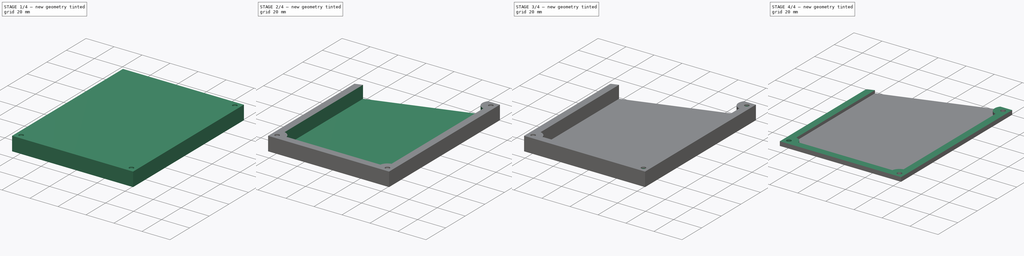
[diagram: build sequence overview — one tinted view per stage of 4, left to right]
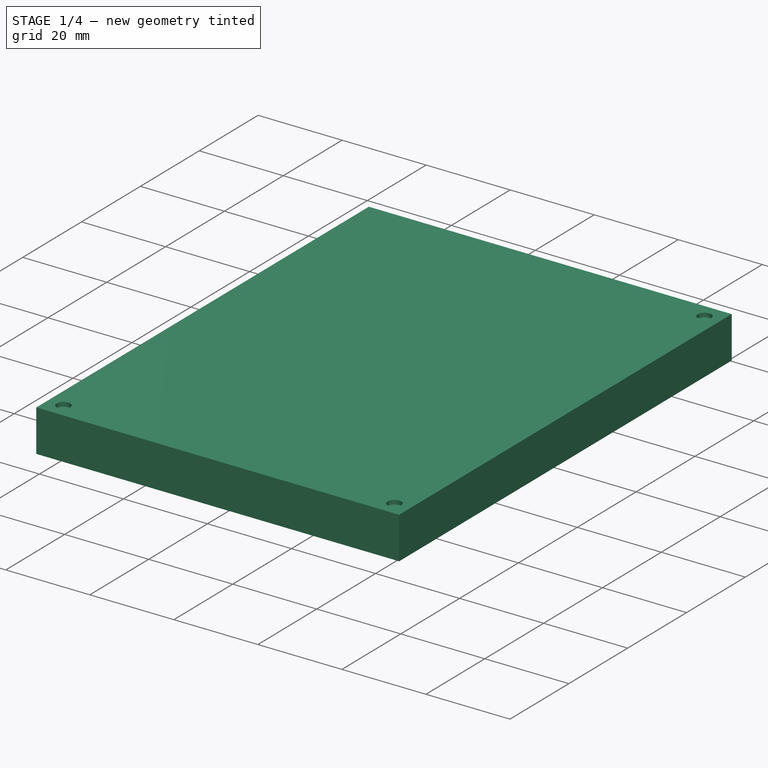
[diagram: stage 1 of 4 — iso view after this stage's code; geometry added in this stage tinted green]
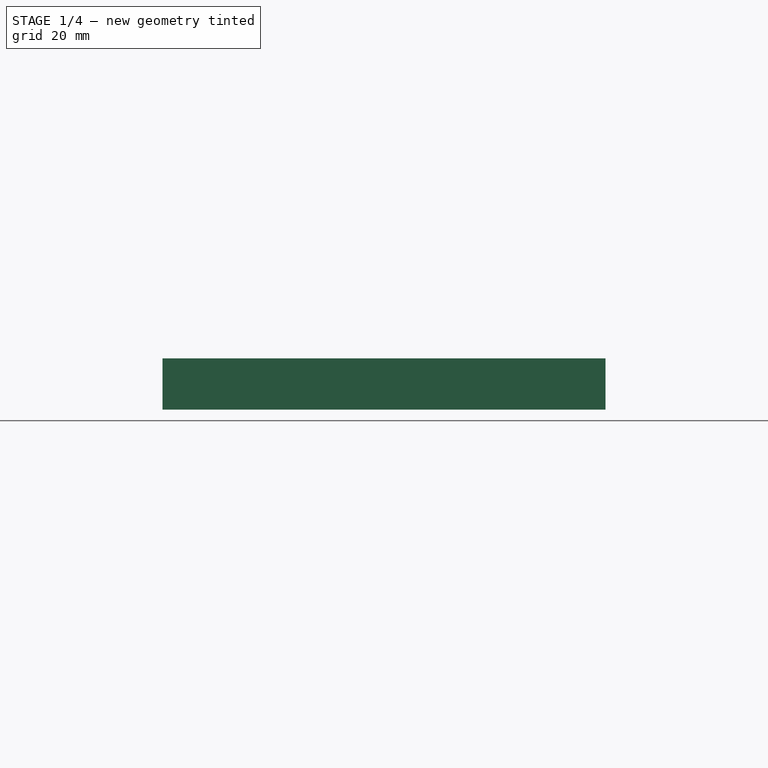
[diagram: stage 1 of 4 — front view after this stage's code; geometry added in this stage tinted green]
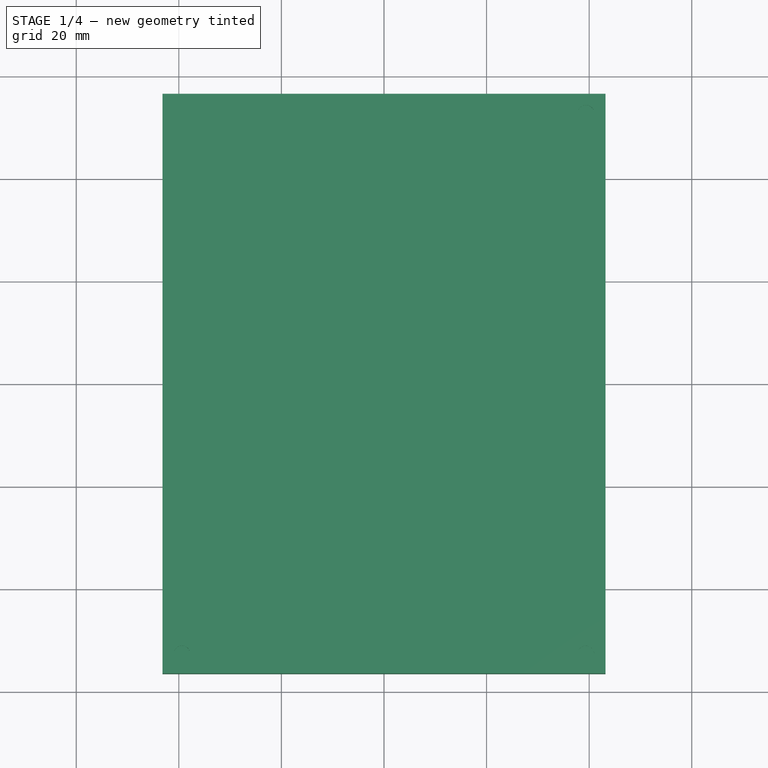
[diagram: stage 1 of 4 — top view after this stage's code; geometry added in this stage tinted green]
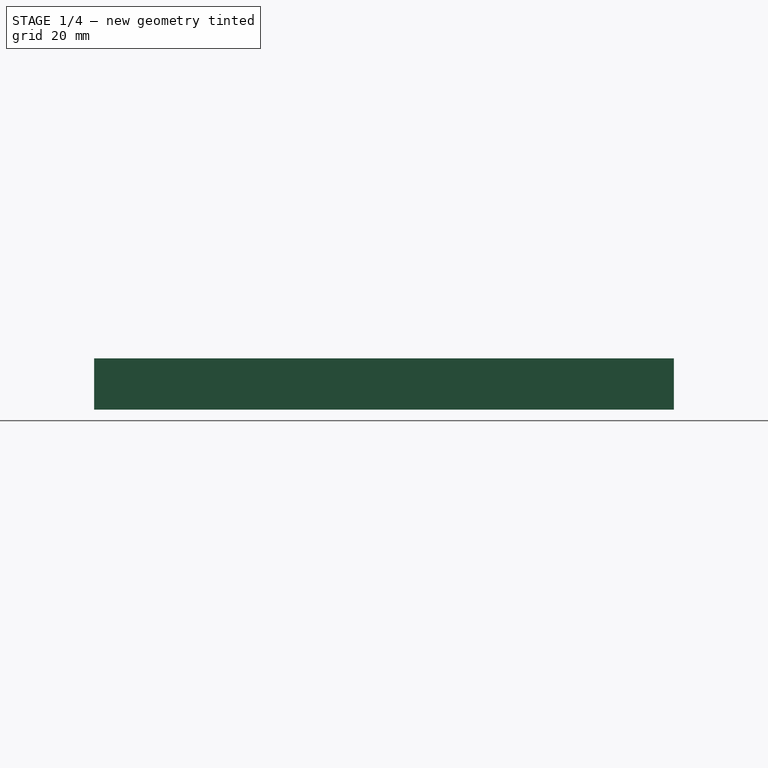
[diagram: stage 1 of 4 — right view after this stage's code; geometry added in this stage tinted green]
FCSTD DOCUMENT  (FreeCAD 0.18.4R)
Label: protector
License: All rights reserved
LicenseURL: http://en.wikipedia.org/wiki/All_rights_reserved
objects: PartDesign::Pocket×7, Sketcher::SketchObject×4, PartDesign::Pad×1, PartDesign::Fillet×1, PartDesign::Body×1
note: 22 computed .brp shape members not serialized (recipe doc carries the construction recipe); baked Part::Feature solids carry a one-line shape summary decoded from their .brp

FEATURE [Sketcher::SketchObject] Sketch
  MapMode = 5
  Support = -> [XY_Plane]
  sketch-geometry (4):
    g0: LineSegment StartX=-43.18 StartY=56.515 StartZ=0 EndX=43.18 EndY=56.515 EndZ=0
    g1: LineSegment StartX=43.18 StartY=56.515 StartZ=0 EndX=43.18 EndY=-56.515 EndZ=0
    g2: LineSegment StartX=43.18 StartY=-56.515 StartZ=0 EndX=-43.18 EndY=-56.515 EndZ=0
    g3: LineSegment StartX=-43.18 StartY=-56.515 StartZ=0 EndX=-43.18 EndY=56.515 EndZ=0
  constraints (10):
    c: Coincident(g0,g1)
    c: Coincident(g1,g2)
    c: Coincident(g2,g3)
    c: Coincident(g3,g0)
    c: Horizontal(g0)
    c: Vertical(g3)
    c: Symmetric(g1,g2,g-2)
    c: Symmetric(g1,g0,g-1)
    c: DistanceX(g2,g2) = 86.36
    c: DistanceY(g1,g1) = 113.03
FEATURE [PartDesign::Pad] Pad
  Length = 10
  Length2 = 100
  Profile = -> Sketch
  Type = 0
FEATURE [Sketcher::SketchObject] Sketch001
  MapMode = 5
  Placement = pos=(0,0,10) rot=(0,0,1;0rad)
  Support = -> [Pad]
  sketch-geometry (5):
    g0: Circle CenterX=-39.37 CenterY=-52.705 CenterZ=0 NormalX=0 NormalY=0 NormalZ=1 AngleXU=0 Radius=1.6
    g1: Circle CenterX=39.37 CenterY=-52.705 CenterZ=0 NormalX=0 NormalY=0 NormalZ=1 AngleXU=0 Radius=1.6
    g2: Circle CenterX=39.37 CenterY=52.705 CenterZ=0 NormalX=0 NormalY=0 NormalZ=1 AngleXU=0 Radius=1.6
    g3: LineSegment [constr] StartX=-39.37 StartY=-52.705 StartZ=0 EndX=39.37 EndY=-52.705 EndZ=0
    g4: LineSegment [constr] StartX=39.37 StartY=-52.705 StartZ=0 EndX=39.37 EndY=52.705 EndZ=0
  constraints (11):
    c: Equal(g2,g1)
    c: Equal(g1,g0)
    c: Radius(g2) = 1.6
    c: Coincident(g3,g0)
    c: Coincident(g3,g1)
    c: Coincident(g4,g1)
    c: Coincident(g4,g2)
    c: Symmetric(g1,g0,g-2)
    c: DistanceX(g3,g3) = 78.74
    c: Symmetric(g1,g2,g-1)
    c: DistanceY(g4,g4) = 105.41
FEATURE [PartDesign::Pocket] Pocket
  BaseFeature = -> Pad
  Length = 1
  Length2 = 100
  Profile = -> Sketch001
  Type = 0
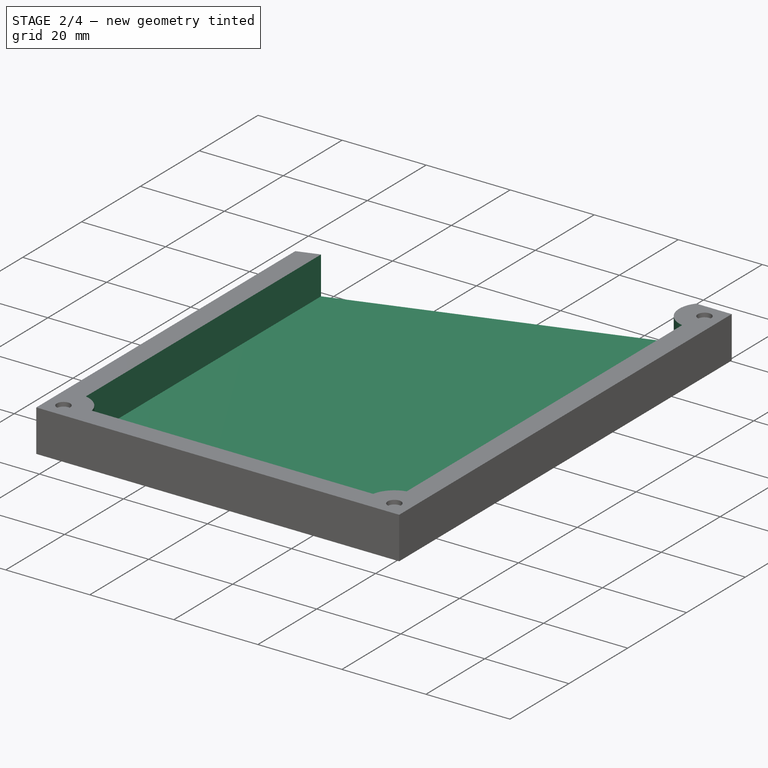
[diagram: stage 2 of 4 — iso view after this stage's code; geometry added in this stage tinted green]
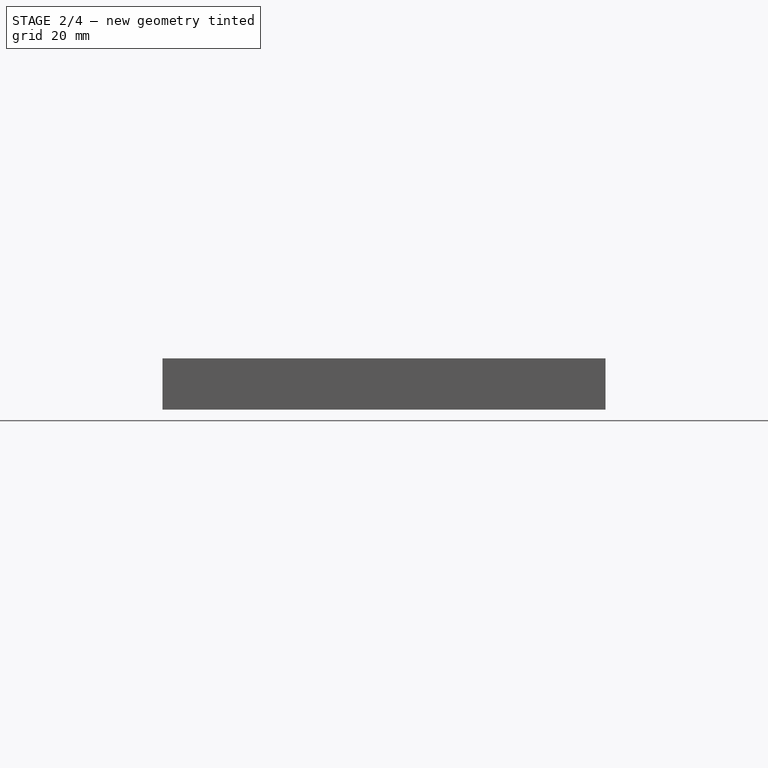
[diagram: stage 2 of 4 — front view after this stage's code; geometry added in this stage tinted green]
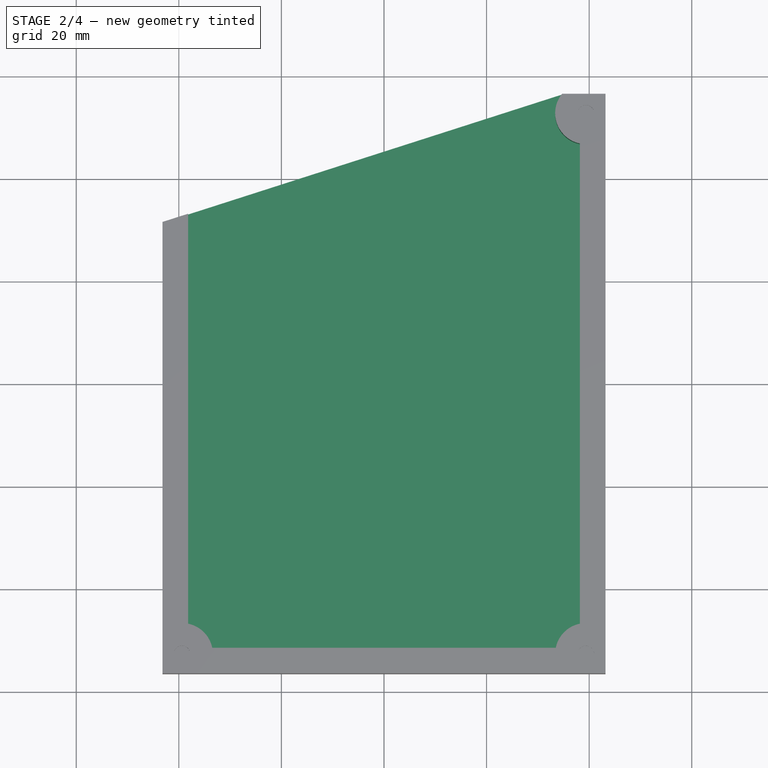
[diagram: stage 2 of 4 — top view after this stage's code; geometry added in this stage tinted green]
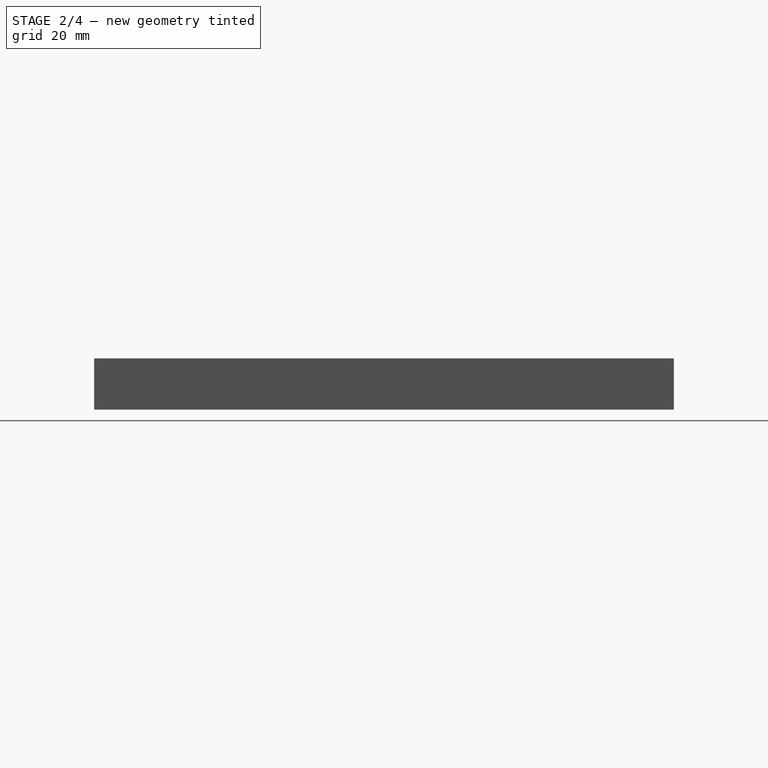
[diagram: stage 2 of 4 — right view after this stage's code; geometry added in this stage tinted green]
FEATURE [Sketcher::SketchObject] Sketch002
  ExternalGeometry = -> [Pocket]
  MapMode = 5
  Placement = pos=(0,0,10) rot=(0,0,1;0rad)
  Support = -> [Pocket]
  sketch-geometry (7):
    g0: LineSegment StartX=-38.18 StartY=56.515 StartZ=0 EndX=34.7349 EndY=56.515 EndZ=0
    g1: LineSegment StartX=-38.18 StartY=-46.8242 StartZ=0 EndX=-38.18 EndY=56.515 EndZ=0
    g2: ArcOfCircle CenterX=-39.37 CenterY=-52.705 CenterZ=0 NormalX=0 NormalY=0 NormalZ=1 AngleXU=0 Radius=6 StartAngle=0.199657 EndAngle=1.37114
    g3: ArcOfCircle CenterX=39.37 CenterY=-52.705 CenterZ=0 NormalX=0 NormalY=0 NormalZ=1 AngleXU=0 Radius=6 StartAngle=1.77045 EndAngle=2.94194
    g4: ArcOfCircle CenterX=39.37 CenterY=52.705 CenterZ=0 NormalX=0 NormalY=0 NormalZ=1 AngleXU=0 Radius=6 StartAngle=2.45358 EndAngle=4.51273
    g5: LineSegment StartX=-33.4892 StartY=-51.515 StartZ=0 EndX=33.4892 EndY=-51.515 EndZ=0
    g6: LineSegment StartX=38.18 StartY=-46.8242 StartZ=0 EndX=38.18 EndY=46.8242 EndZ=0
  constraints (20):
    c: Coincident(g1,g0)
    c: Vertical(g1)
    c: PointOnObject(g0,g-3)
    c: Coincident(g2,g-6)
    c: Coincident(g3,g-5)
    c: Coincident(g4,g-4)
    c: Coincident(g4,g0)
    c: Equal(g4,g3)
    c: Coincident(g1,g2)
    c: Coincident(g5,g2)
    c: Coincident(g5,g3)
    c: Coincident(g6,g3)
    c: Coincident(g6,g4)
    c: Vertical(g6)
    c: DistanceX(g-3,g0) = 5
    c: DistanceY(g-7,g2) = 5
    c: Symmetric(g3,g2,g-2)
    c: Symmetric(g3,g1,g-2)
    c: Horizontal(g0)
    c: Radius(g3) = 6
FEATURE [PartDesign::Pocket] Pocket001
  BaseFeature = -> Pocket
  Length = 9
  Length2 = 100
  Profile = -> Sketch002
  Type = 0
FEATURE [Sketcher::SketchObject] Sketch003
  ExternalGeometry = -> [Pocket001]
  MapMode = 5
  Placement = pos=(0,0,0) rot=(1,0,0;3.14159rad)
  Support = -> [Pocket001]
  sketch-geometry (5):
    g0: LineSegment StartX=34.7349 StartY=-56.515 StartZ=0 EndX=-43.18 EndY=-31.515 EndZ=0
    g1: LineSegment StartX=-43.18 StartY=-31.515 StartZ=0 EndX=-75.6936 EndY=-36.7789 EndZ=0
    g2: LineSegment StartX=-75.6936 StartY=-36.7789 StartZ=0 EndX=-62.6542 EndY=-136.901 EndZ=0
    g3: LineSegment StartX=-62.6542 StartY=-136.901 StartZ=0 EndX=71.5296 EndY=-145.782 EndZ=0
    g4: LineSegment StartX=71.5296 StartY=-145.782 StartZ=0 EndX=34.7349 EndY=-56.515 EndZ=0
  constraints (8):
    c: Coincident(g-3,g0)
    c: PointOnObject(g0,g-4)
    c: Coincident(g0,g1)
    c: Coincident(g1,g2)
    c: Coincident(g2,g3)
    c: Coincident(g3,g4)
    c: Coincident(g4,g0)
    c: DistanceY(g0,g0) = 25
FEATURE [PartDesign::Pocket] Pocket002
  BaseFeature = -> Pocket001
  Length = 5
  Length2 = 100
  Profile = -> Sketch003
  Type = 1
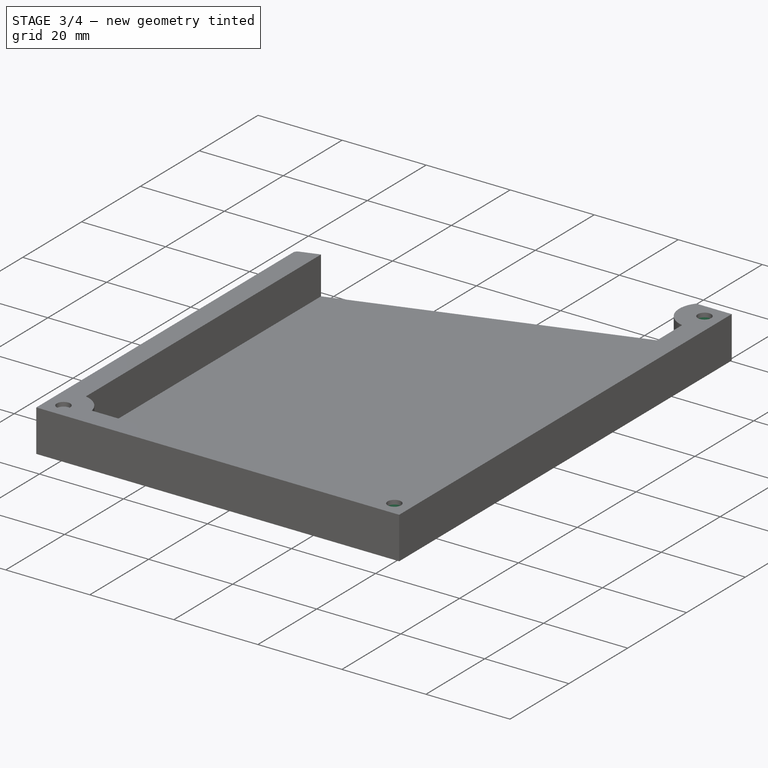
[diagram: stage 3 of 4 — iso view after this stage's code; geometry added in this stage tinted green]
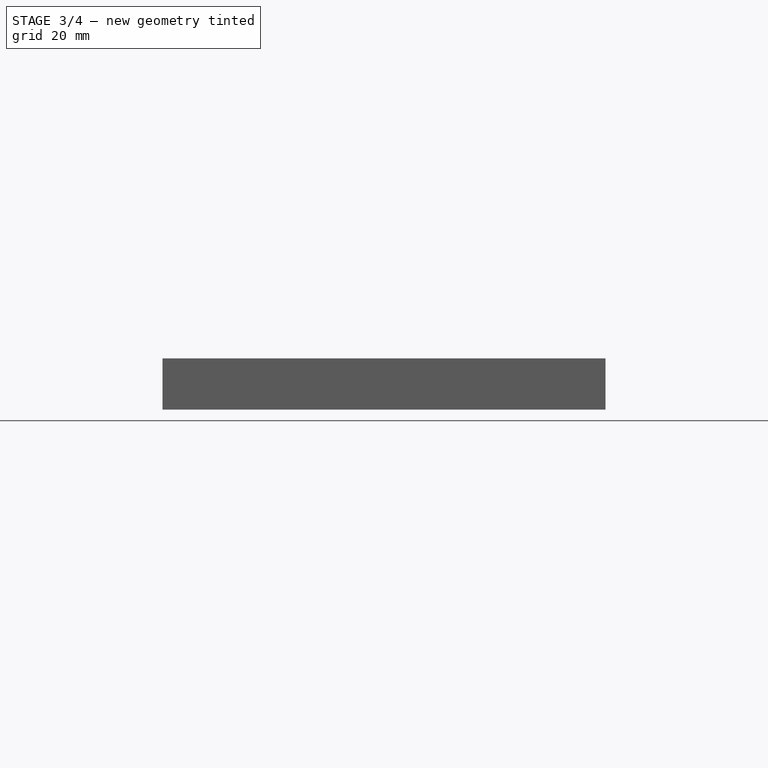
[diagram: stage 3 of 4 — front view after this stage's code; geometry added in this stage tinted green]
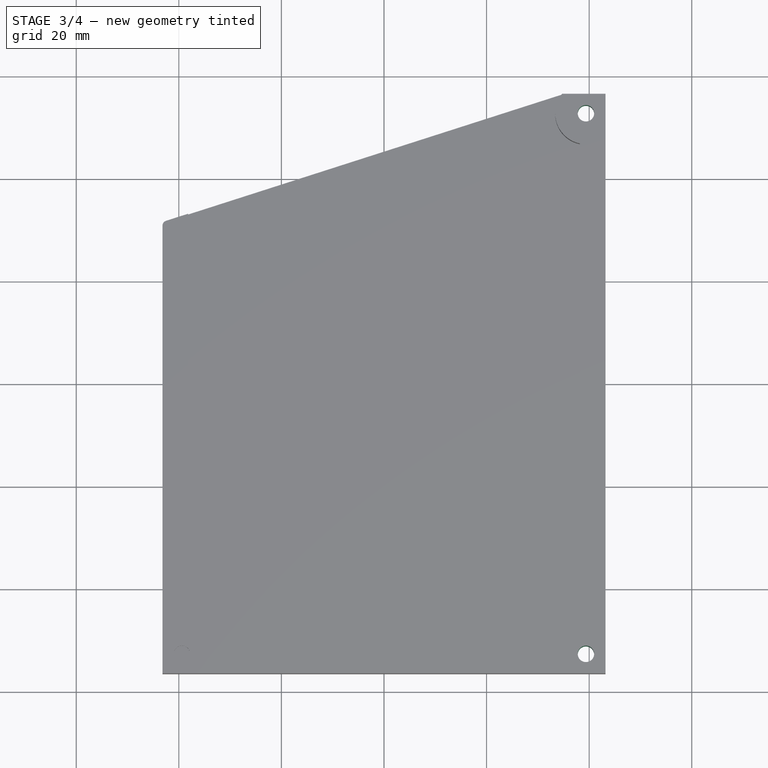
[diagram: stage 3 of 4 — top view after this stage's code; geometry added in this stage tinted green]
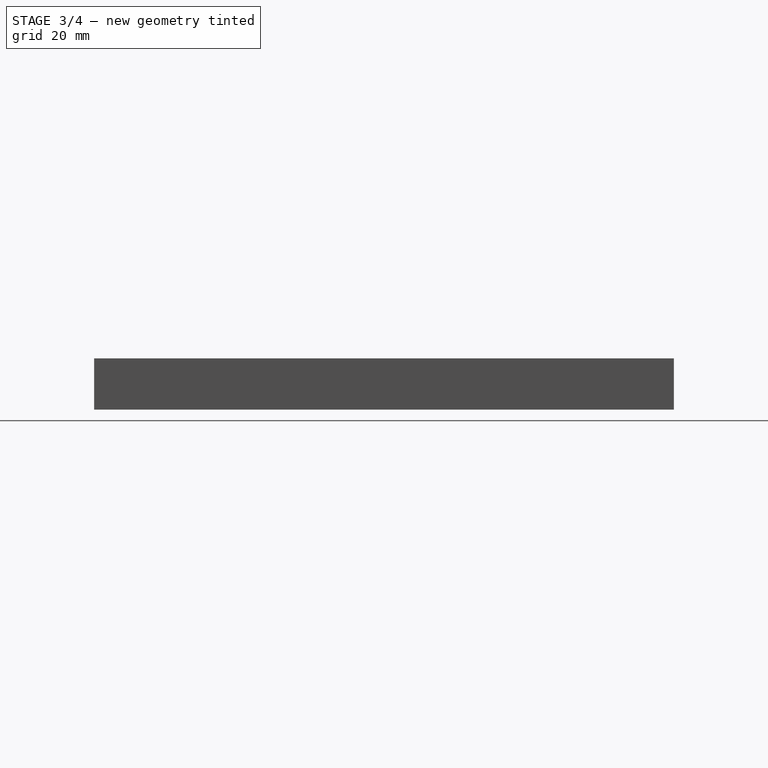
[diagram: stage 3 of 4 — right view after this stage's code; geometry added in this stage tinted green]
FEATURE [PartDesign::Fillet] Fillet
  Base = -> Pocket002 [Edge26]
  BaseFeature = -> Pocket002
  Radius = 1
FEATURE [PartDesign::Pocket] Pocket003
  BaseFeature = -> Fillet
  Length = 5
  Length2 = 100
  Profile = -> Fillet [Face20]
  Type = 1
FEATURE [PartDesign::Pocket] Pocket004
  BaseFeature = -> Pocket003
  Length = 5
  Length2 = 100
  Profile = -> Pocket003 [Face20]
  Type = 1
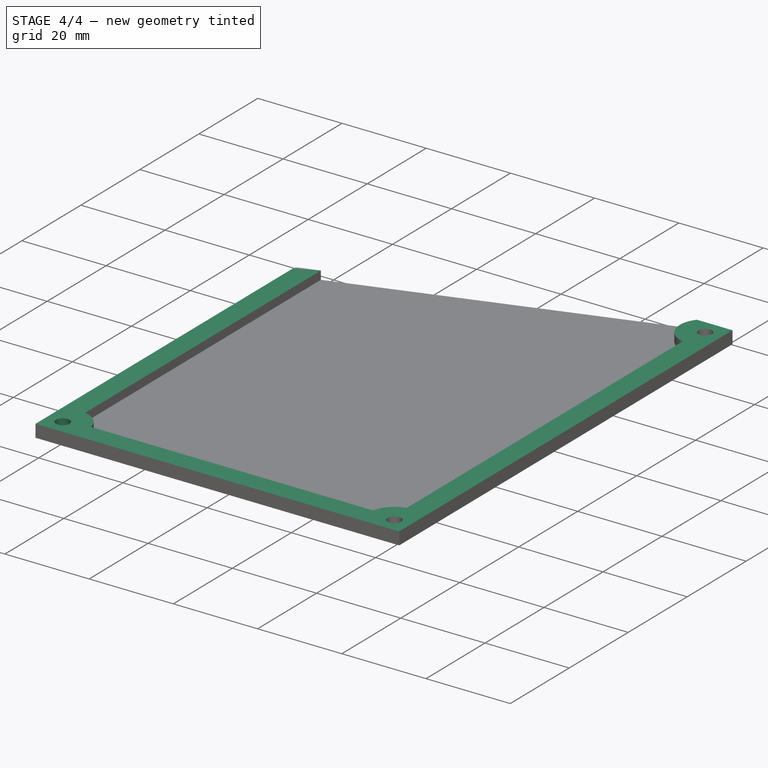
[diagram: stage 4 of 4 — iso view after this stage's code; geometry added in this stage tinted green]
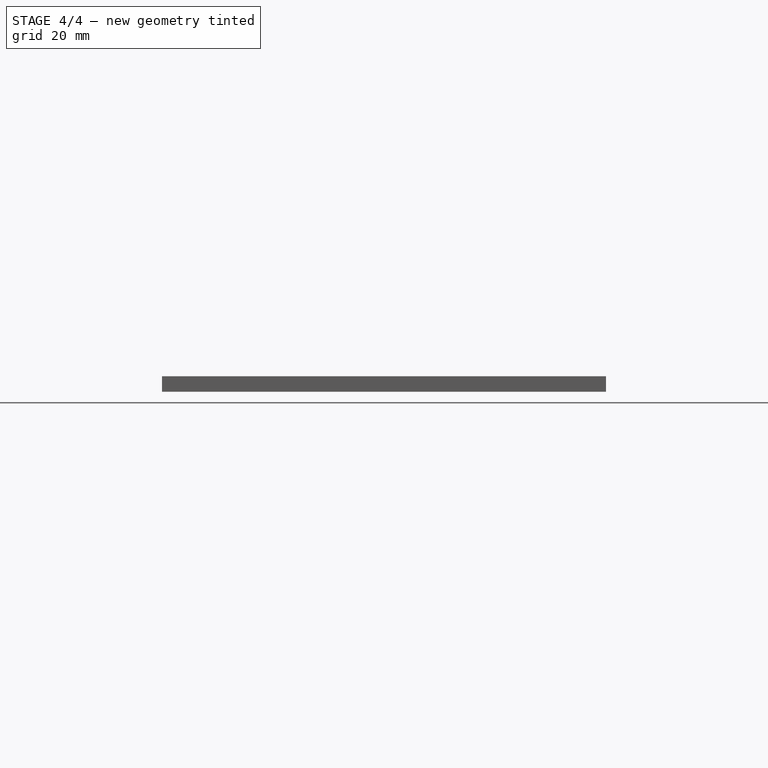
[diagram: stage 4 of 4 — front view after this stage's code; geometry added in this stage tinted green]
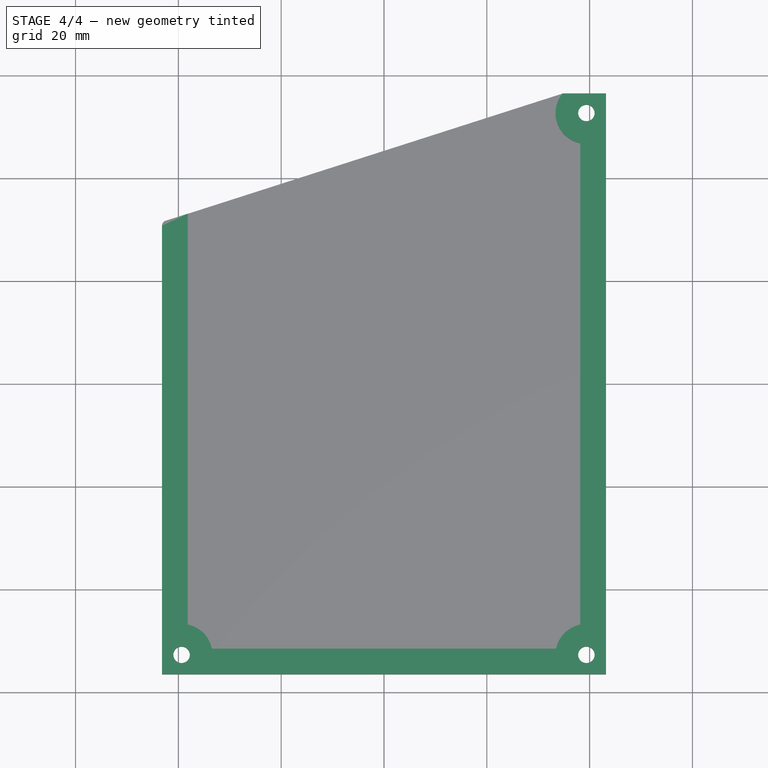
[diagram: stage 4 of 4 — top view after this stage's code; geometry added in this stage tinted green]
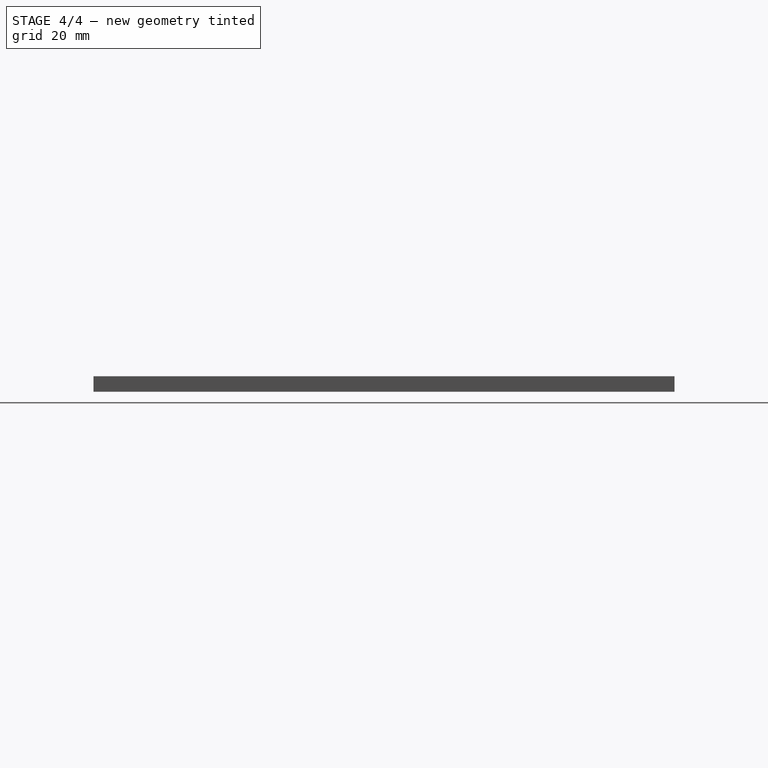
[diagram: stage 4 of 4 — right view after this stage's code; geometry added in this stage tinted green]
FEATURE [PartDesign::Pocket] Pocket005
  BaseFeature = -> Pocket004
  Length = 5
  Length2 = 100
  Profile = -> Pocket004 [Face21]
  Type = 1
FEATURE [PartDesign::Pocket] Pocket006
  BaseFeature = -> Pocket005
  Length = 7
  Length2 = 100
  Profile = -> Pocket005 [Face11]
  Type = 0
FEATURE [PartDesign::Body] Body
  Group = -> [Sketch,Pad,Sketch001,Pocket,Sketch002,Pocket001,Sketch003,Pocket002,Fillet,Pocket003,Pocket004,Pocket005,Pocket006]
  Origin = -> Origin
  Tip = -> Pocket006
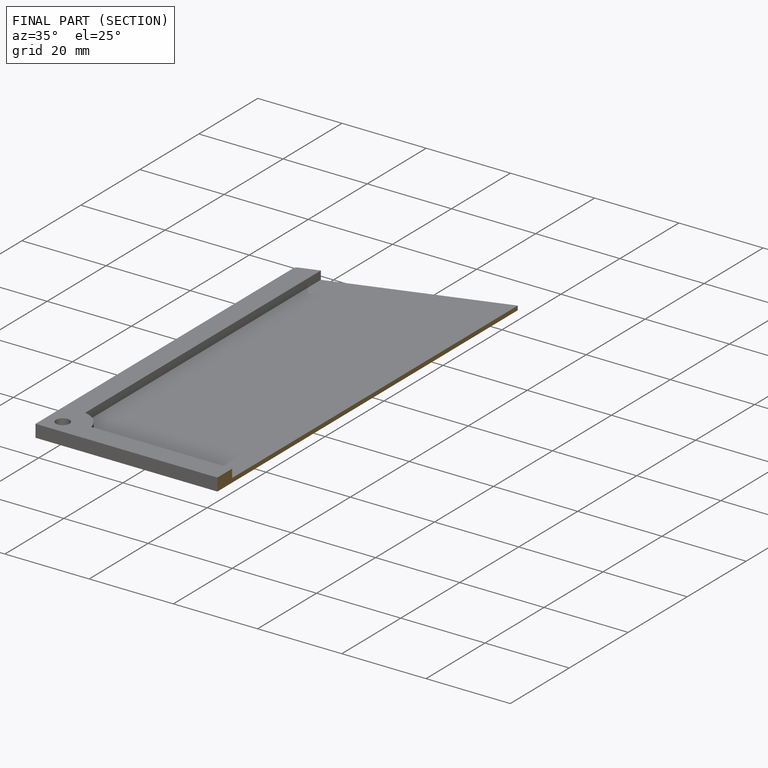
[diagram: finished part — half-section view (interior)]
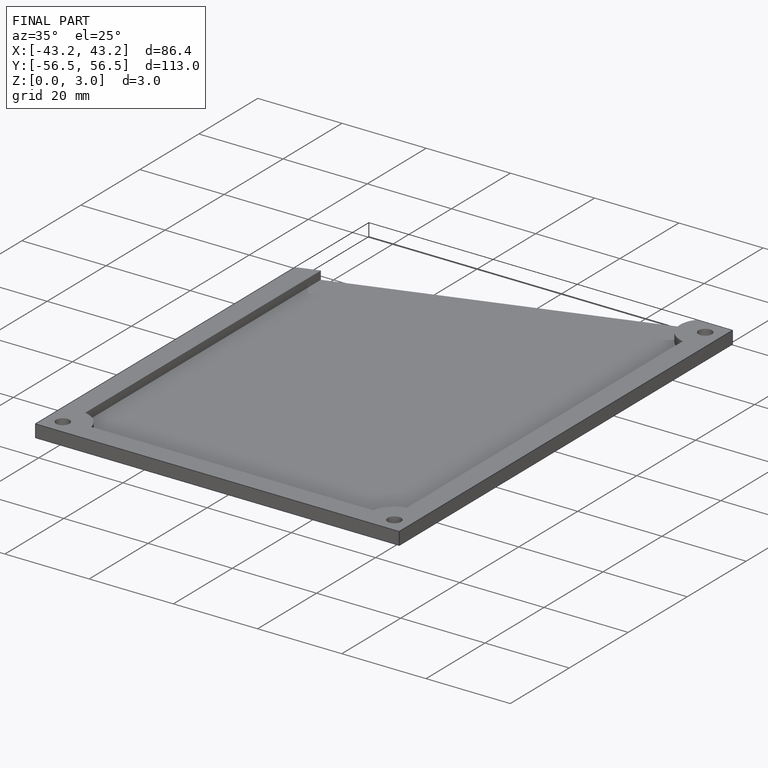
[diagram: finished part — iso view with bounding-box wireframe]
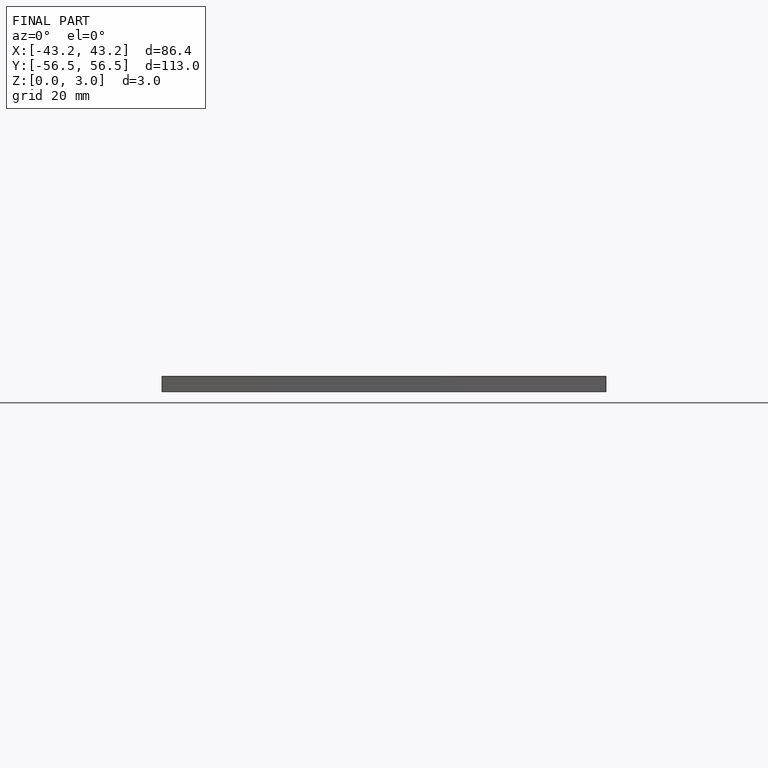
[diagram: finished part — front view with bounding-box wireframe]
